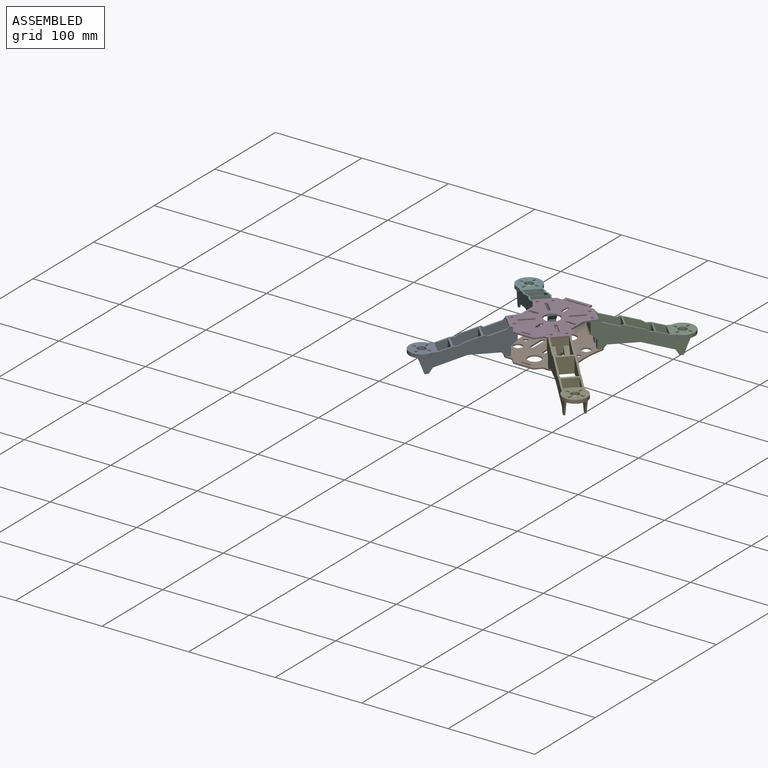
[diagram: assembled view]
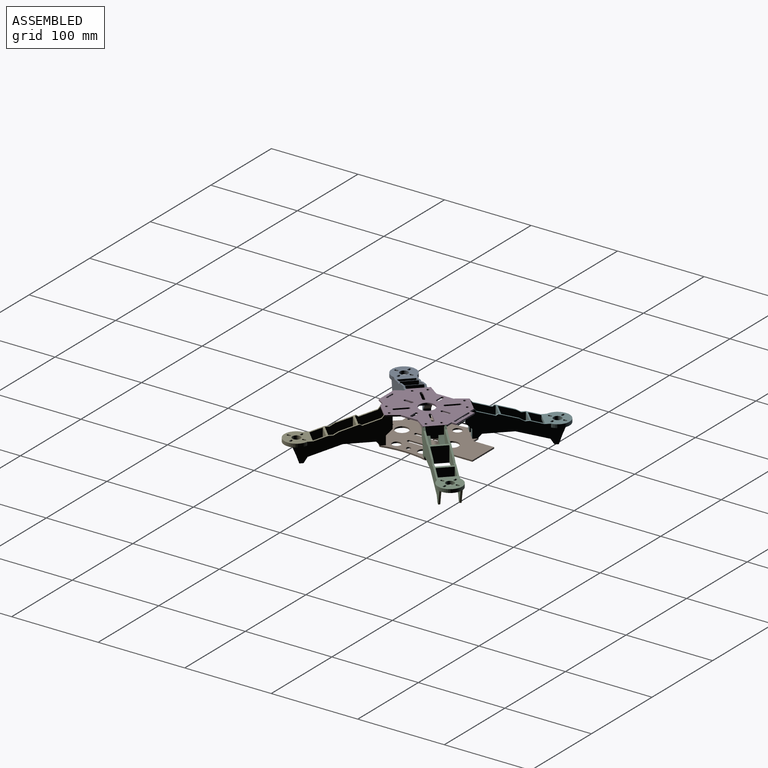
[diagram: assembled view, second angle]
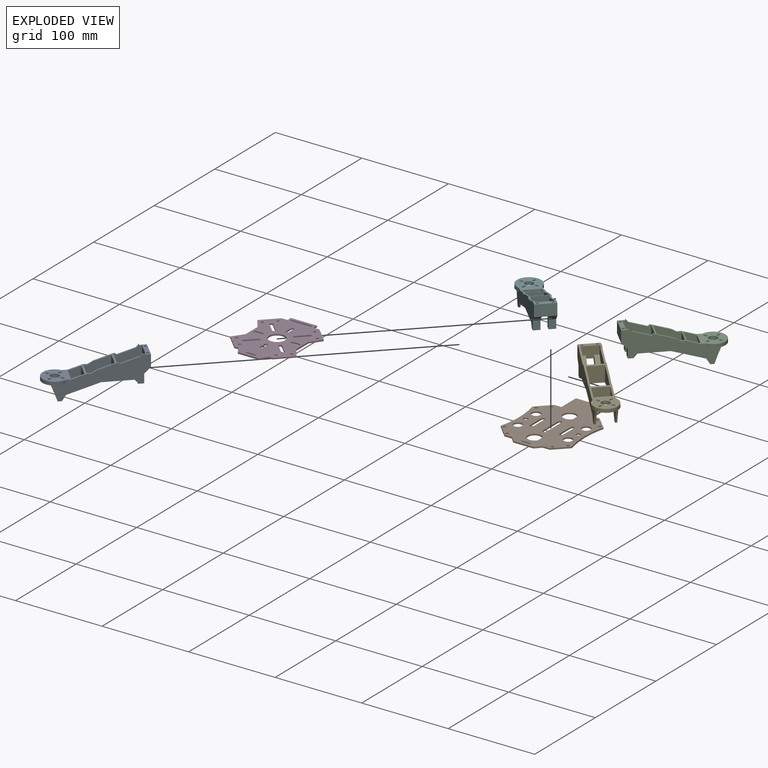
[diagram: exploded view]
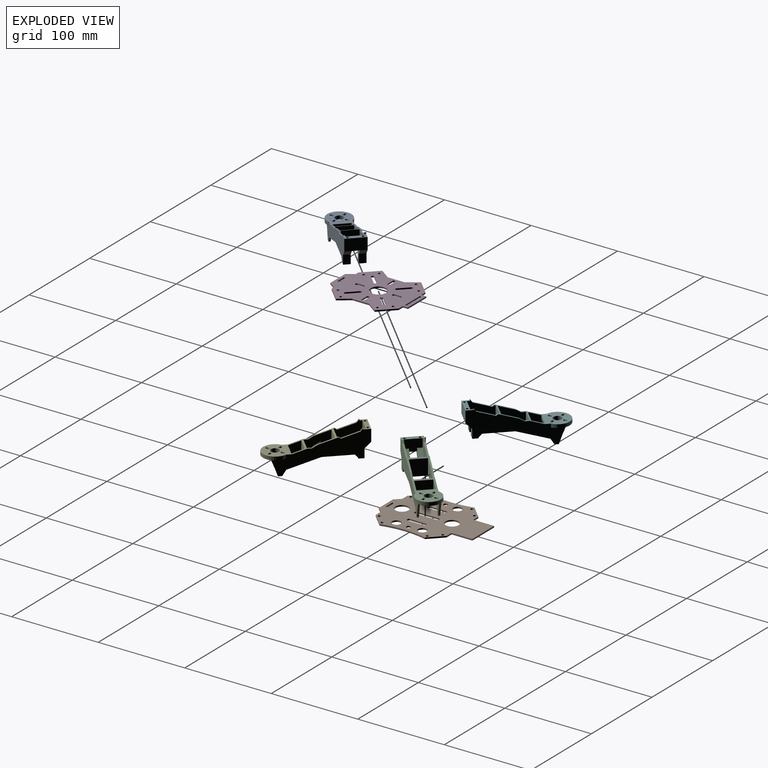
[diagram: exploded view, second angle]
ASSEMBLY  parts=6 mates=4
PART A: 83 faces, bbox 104.5x28x43.7 mm
  f0: plane 30.64x27.6mm, normal (0,1,0), area 504mm2, adj f5,f35,f36,f37,f42,f43,f44,f45
  f1: plane 27.04x22.51mm, normal (0,-1,0), area 400.2mm2, adj f34,f35,f47,f51,f52,f80,f81
  f2: plane 27.04x22.51mm, normal (0,1,0), area 400.2mm2, adj f34,f35,f47,f48,f49,f80,f81
  f3: plane 32.99x25.93mm, normal (0,-1,0), area 429.1mm2, adj f7,f8,f29,f34,f50,f62,f63,f64
  f4: plane 32.99x25.93mm, normal (0,1,0), area 429.1mm2, adj f7,f8,f29,f30,f31,f32,f33,f34
  f5: plane 18.5x13.34mm, normal (-1,0,0), area 209.2mm2, adj f0,f6,f42,f66,f71,f72,f73,f74
  f6: plane 7.78x5mm, normal (0,0,-1), area 38.9mm2, adj f5,f41,f72,f74
  f7: plane 18.5x4mm, normal (1,0,0), area 74mm2, adj f3,f4,f8,f29
  f8: plane 28x28mm, normal (0,0,-1), area 463.1mm2, adj f3,f4,f7,f9,f10,f11,f12,f13
  f9: cylinder r=1.25mm len=4mm, axis (0,0,-1), area 15.7mm2, adj f8,f10,f28,f29
  f10: plane 4x1.41mm, normal (-0.71,-0.71,0), area 8mm2, adj f8,f9,f11,f29
  f11: cylinder r=1.25mm len=4mm, axis (0,0,-1), area 15.7mm2, adj f8,f10,f28,f29
  f12: plane 96.63x43.7mm, normal (0,-1,0), area 1607mm2, adj f8,f23,f29,f30,f31,f32,f33,f34
  f13: plane 96.63x43.7mm, normal (0,1,0), area 1607mm2, adj f8,f23,f29,f34,f35,f41,f42,f47
  f14: cylinder r=1.25mm len=4mm, axis (0,0,-1), area 15.7mm2, adj f8,f15,f24,f29
  f15: plane 4x1.41mm, normal (-0.71,0.71,0), area 8mm2, adj f8,f14,f16,f29
  f16: cylinder r=1.25mm len=4mm, axis (0,0,-1), area 15.7mm2, adj f8,f15,f24,f29
  f17: cylinder r=1.25mm len=4mm, axis (0,0,-1), area 15.7mm2, adj f8,f18,f25,f29
  f18: plane 4x1.41mm, normal (0.71,0.71,0), area 8mm2, adj f8,f17,f19,f29
  f19: cylinder r=1.25mm len=4mm, axis (0,0,-1), area 15.7mm2, adj f8,f18,f25,f29
  f20: cylinder r=1.25mm len=4mm, axis (0,0,-1), area 15.7mm2, adj f8,f21,f26,f29
  f21: plane 4x1.41mm, normal (0.71,-0.71,0), area 8mm2, adj f8,f20,f22,f29
  f22: cylinder r=1.25mm len=4mm, axis (0,0,-1), area 15.7mm2, adj f8,f21,f26,f29
  f23: cylinder r=14mm len=28mm, axis (0,0,-1), area 247.3mm2, adj f8,f12,f13,f29
  f24: plane 4x1.41mm, normal (0.71,-0.71,0), area 8mm2, adj f8,f14,f16,f29
  f25: plane 4x1.41mm, normal (-0.71,-0.71,0), area 8mm2, adj f8,f17,f19,f29
  f26: plane 4x1.41mm, normal (-0.71,0.71,0), area 8mm2, adj f8,f20,f22,f29
  f27: cylinder r=4.75mm len=9.5mm, axis (0,0,-1), area 119.4mm2, adj f8,f29
  f28: plane 4x1.41mm, normal (0.71,0.71,0), area 8mm2, adj f8,f9,f11,f29
  f29: plane 28.32x28mm, normal (0,0,1), area 544.9mm2, adj f3,f4,f7,f9,f10,f11,f12,f13
  f30: plane 7.94x3.35mm, normal (-0.92,0,-0.39), area 17.2mm2, adj f4,f8,f12,f31
  f31: plane 10.06x3.56mm, normal (-0.94,0,-0.33), area 21.3mm2, adj f4,f12,f30,f32
  f32: plane 4.06x2mm, normal (0,0,-1), area 8.1mm2, adj f4,f12,f31,f33
  f33: plane 6.22x3.94mm, normal (0.84,0,-0.53), area 14.7mm2, adj f4,f12,f32,f34
  f34: plane 33.76x22.5mm, normal (0.3,0,-0.95), area 180.3mm2, adj f1,f2,f3,f4,f12,f13,f33,f35
  f35: plane 32.13x22.5mm, normal (0,0,-1), area 165.5mm2, adj f0,f1,f2,f12,f13,f34,f36,f61
  f36: plane 3.74x3.32mm, normal (-0.75,0,-0.66), area 10mm2, adj f0,f12,f35,f37
  f37: plane 12.76x7.36mm, normal (-1,0,0), area 69.9mm2, adj f0,f12,f36,f38,f73,f74
  f38: plane 7.36x6mm, normal (0,0,-1), area 37.1mm2, adj f12,f37,f39,f74,f77
  f39: plane 10.25x7.36mm, normal (1,0,0), area 75.4mm2, adj f12,f38,f40,f74
  f40: plane 7.36x6.5mm, normal (0.7,0,-0.71), area 67.2mm2, adj f12,f39,f41,f74
  f41: plane 22.5x13.34mm, normal (1,0,0), area 300mm2, adj f6,f12,f13,f40,f42,f57
  f42: plane 22.5x7.9mm, normal (0,0,1), area 110mm2, adj f0,f5,f12,f13,f41,f43,f56,f66
  f43: plane 2x1.4mm, normal (1,0,0), area 2.8mm2, adj f0,f12,f42,f44
  f44: plane 3.35x2.51mm, normal (-0.8,0,0.6), area 8.4mm2, adj f0,f12,f43,f45
  f45: plane 18.91x5.92mm, normal (-0.3,0,0.95), area 39.6mm2, adj f0,f12,f44,f46
  f46: plane 2.28x2mm, normal (0.56,0,0.83), area 5.5mm2, adj f0,f12,f45,f47
  f47: plane 22.5x20.16mm, normal (-0.3,0,0.95), area 123.3mm2, adj f0,f1,f2,f12,f13,f46,f48,f52
  f48: plane 5.38x3.18mm, normal (-0.51,0,0.86), area 12.5mm2, adj f2,f12,f47,f49
  f49: plane 4.5x2mm, normal (0.02,0,1), area 9mm2, adj f2,f12,f48,f50
  f50: plane 22.5x14.54mm, normal (-0.3,0,0.95), area 99.7mm2, adj f3,f4,f12,f13,f29,f49,f51,f79
  f51: plane 4.5x2mm, normal (0.02,0,1), area 9mm2, adj f1,f13,f50,f52
  f52: plane 5.38x3.18mm, normal (-0.51,0,0.86), area 12.5mm2, adj f1,f13,f47,f51
  f53: plane 2.28x2mm, normal (0.56,0,0.83), area 5.5mm2, adj f13,f47,f54,f66
  f54: plane 18.91x5.92mm, normal (-0.3,0,0.95), area 39.6mm2, adj f13,f53,f55,f66
  f55: plane 3.35x2.51mm, normal (-0.8,0,0.6), area 8.4mm2, adj f13,f54,f56,f66
  f56: plane 2x1.4mm, normal (1,0,0), area 2.8mm2, adj f13,f42,f55,f66
  f57: plane 7.36x6.5mm, normal (0.7,0,-0.71), area 67.2mm2, adj f13,f41,f58,f72
  f58: plane 10.25x7.36mm, normal (1,0,0), area 75.4mm2, adj f13,f57,f59,f72
  f59: plane 7.36x6mm, normal (0,0,-1), area 37.1mm2, adj f13,f58,f60,f72,f75
  f60: plane 12.76x7.36mm, normal (-1,0,0), area 69.9mm2, adj f13,f59,f61,f66,f71,f72
  f61: plane 3.74x3.32mm, normal (-0.75,0,-0.66), area 10mm2, adj f13,f35,f60,f66
  f62: plane 6.22x3.94mm, normal (0.84,0,-0.53), area 14.7mm2, adj f3,f13,f34,f63
  f63: plane 4.06x2mm, normal (0,0,-1), area 8.1mm2, adj f3,f13,f62,f64
  f64: plane 10.06x3.56mm, normal (-0.94,0,-0.33), area 21.3mm2, adj f3,f13,f63,f65
  f65: plane 7.94x3.35mm, normal (-0.92,0,-0.39), area 17.2mm2, adj f3,f8,f13,f64
  f66: plane 30.64x27.6mm, normal (0,-1,0), area 504mm2, adj f5,f35,f42,f47,f53,f54,f55,f56
  f67: cylinder r=1.5mm len=4mm, axis (0,0,1), area 37.7mm2, adj f42,f68
  f68: plane 3x3mm, normal (0,0,1), area 7.1mm2, adj f67
  f69: cylinder r=1.5mm len=4mm, axis (0,0,1), area 37.7mm2, adj f42,f70
  f70: plane 3x3mm, normal (0,0,1), area 7.1mm2, adj f69
  f71: plane 7.5x7.4mm, normal (-0.7,0,0.71), area 56.5mm2, adj f5,f60,f66,f72
  f72: plane 20.16x12.5mm, normal (0,-1,0), area 119.3mm2, adj f5,f6,f57,f58,f59,f60,f71
  f73: plane 7.5x7.4mm, normal (-0.7,0,0.71), area 56.5mm2, adj f0,f5,f37,f74
  f74: plane 20.16x12.5mm, normal (0,1,0), area 119.3mm2, adj f5,f6,f37,f38,f39,f40,f73
  f75: cylinder r=1.5mm len=4mm, axis (0,0,-1), area 37.7mm2, adj f59,f76
  f76: plane 3x3mm, normal (0,0,-1), area 7.1mm2, adj f75
  f77: cylinder r=1.5mm len=4mm, axis (0,0,-1), area 37.7mm2, adj f38,f78
  f78: plane 3x3mm, normal (0,0,-1), area 7.1mm2, adj f77
  f79: plane 18.5x14.04mm, normal (-1,0,0), area 259.8mm2, adj f3,f4,f34,f50
  f80: plane 18.5x14.04mm, normal (1,0,0), area 259.8mm2, adj f1,f2,f34,f50
  f81: plane 18.5x18.22mm, normal (-1,0,0), area 337.2mm2, adj f1,f2,f35,f47
  f82: plane 18.85x18.5mm, normal (1,0,0), area 348.7mm2, adj f0,f35,f47,f66
PART B: 50 faces, bbox 82x112.5x1.6 mm
  f0: plane 18x1.6mm, normal (1,0,0), area 28.8mm2, adj f1,f29,f48,f49
  f1: cylinder r=2mm len=4mm, axis (0,0,-1), area 10.1mm2, adj f0,f2,f48,f49
  f2: plane 18x1.6mm, normal (-1,0,0), area 28.8mm2, adj f1,f29,f48,f49
  f3: cylinder r=2mm len=4mm, axis (0,0,-1), area 10.1mm2, adj f4,f30,f48,f49
  f4: plane 18x1.6mm, normal (-1,0,0), area 28.8mm2, adj f3,f5,f48,f49
  f5: cylinder r=2mm len=4mm, axis (0,0,-1), area 10.1mm2, adj f4,f30,f48,f49
  f6: cylinder r=2mm len=4mm, axis (0,0,-1), area 10.1mm2, adj f7,f31,f48,f49
  f7: plane 25x1.6mm, normal (-1,0,0), area 40mm2, adj f6,f8,f48,f49
  f8: cylinder r=2mm len=4mm, axis (0,0,-1), area 10.1mm2, adj f7,f31,f48,f49
  f9: plane 9x1.6mm, normal (0,1,0), area 14.4mm2, adj f10,f32,f48,f49
  f10: cylinder r=1mm len=2mm, axis (0,0,-1), area 5mm2, adj f9,f11,f48,f49
  f11: plane 9x1.6mm, normal (0,-1,0), area 14.4mm2, adj f10,f32,f48,f49
  f12: plane 8.18x1.6mm, normal (0,-1,0), area 13.1mm2, adj f13,f33,f48,f49
  f13: plane 24x1.6mm, normal (-1,0,0), area 38.4mm2, adj f12,f14,f48,f49
  f14: plane 36x1.6mm, normal (0,-1,0), area 57.6mm2, adj f13,f15,f48,f49
  f15: plane 24x1.6mm, normal (1,0,0), area 38.4mm2, adj f14,f16,f48,f49
  f16: plane 8.18x1.6mm, normal (0,-1,0), area 13.1mm2, adj f15,f17,f48,f49
  f17: plane 14.83x14.83mm, normal (0.71,-0.71,0), area 33.5mm2, adj f16,f18,f48,f49
  f18: cylinder r=107.03mm len=52.35mm, axis (0,0,-1), area 84.6mm2, adj f17,f19,f48,f49
  f19: plane 14.83x14.83mm, normal (0.71,0.71,0), area 33.5mm2, adj f18,f20,f48,f49
  f20: plane 8.43x1.6mm, normal (0,1,0), area 13.5mm2, adj f19,f21,f48,f49
  f21: plane 6.5x6mm, normal (0.73,0.68,0), area 14.2mm2, adj f20,f22,f48,f49
  f22: plane 23.5x1.6mm, normal (0,1,0), area 37.6mm2, adj f21,f23,f48,f49
  f23: plane 6.5x6mm, normal (-0.73,0.68,0), area 14.2mm2, adj f22,f24,f48,f49
  f24: plane 8.43x1.6mm, normal (0,1,0), area 13.5mm2, adj f23,f25,f48,f49
  f25: plane 14.83x14.83mm, normal (-0.71,0.71,0), area 33.5mm2, adj f24,f26,f48,f49
  f26: cylinder r=107.03mm len=52.35mm, axis (0,0,-1), area 84.6mm2, adj f25,f33,f48,f49
  f27: cylinder r=7.5mm len=15mm, axis (0,0,-1), area 75.4mm2, adj f48,f49
  f28: cylinder r=7.5mm len=15mm, axis (0,0,-1), area 75.4mm2, adj f48,f49
  f29: cylinder r=2mm len=4mm, axis (0,0,-1), area 10.1mm2, adj f0,f2,f48,f49
  f30: plane 18x1.6mm, normal (1,0,0), area 28.8mm2, adj f3,f5,f48,f49
  f31: plane 25x1.6mm, normal (1,0,0), area 40mm2, adj f6,f8,f48,f49
  f32: cylinder r=1mm len=2mm, axis (0,0,-1), area 5mm2, adj f9,f11,f48,f49
  f33: plane 14.83x14.83mm, normal (-0.71,-0.71,0), area 33.5mm2, adj f12,f26,f48,f49
  f34: cylinder r=2.5mm len=5mm, axis (0,0,-1), area 25.1mm2, adj f48,f49
  f35: cylinder r=2.5mm len=5mm, axis (0,0,-1), area 25.1mm2, adj f48,f49
  f36: cylinder r=5mm len=10mm, axis (0,0,-1), area 50.3mm2, adj f48,f49
  f37: cylinder r=5mm len=10mm, axis (0,0,-1), area 50.3mm2, adj f48,f49
  f38: cylinder r=5mm len=10mm, axis (0,0,-1), area 50.3mm2, adj f48,f49
  f39: cylinder r=1.62mm len=3.25mm, axis (0,0,-1), area 16.3mm2, adj f48,f49
  f40: cylinder r=1.62mm len=3.25mm, axis (0,0,-1), area 16.3mm2, adj f48,f49
  f41: cylinder r=1.62mm len=3.25mm, axis (0,0,-1), area 16.3mm2, adj f48,f49
  f42: cylinder r=1.62mm len=3.25mm, axis (0,0,-1), area 16.3mm2, adj f48,f49
  f43: cylinder r=1.62mm len=3.25mm, axis (0,0,-1), area 16.3mm2, adj f48,f49
  f44: cylinder r=1.62mm len=3.25mm, axis (0,0,-1), area 16.3mm2, adj f48,f49
  f45: cylinder r=1.62mm len=3.25mm, axis (0,0,-1), area 16.3mm2, adj f48,f49
  f46: cylinder r=1.62mm len=3.25mm, axis (0,0,-1), area 16.3mm2, adj f48,f49
  f47: cylinder r=5mm len=10mm, axis (0,0,-1), area 50.3mm2, adj f48,f49
  f48: plane 112.5x82mm, normal (0,0,1), area 6036.6mm2, adj f0,f1,f2,f3,f4,f5,f6,f7
  f49: plane 112.5x82mm, normal (0,0,-1), area 6036.6mm2, adj f0,f1,f2,f3,f4,f5,f6,f7
PART C: same geometry as A
PART D: 71 faces, bbox 76.8x91.7x1.6 mm
  f0: cylinder r=1.59mm len=2.71mm, axis (0,0,-1), area 8.1mm2, adj f1,f68,f69,f70
  f1: plane 10.13x10.13mm, normal (-0.71,-0.71,0), area 23.3mm2, adj f0,f2,f69,f70
  f2: cylinder r=1.59mm len=2.71mm, axis (0,0,-1), area 8.1mm2, adj f1,f68,f69,f70
  f3: cylinder r=1.59mm len=3.18mm, axis (0,0,-1), area 8.1mm2, adj f4,f49,f69,f70
  f4: plane 7.83x1.63mm, normal (0,1,0), area 12.7mm2, adj f3,f5,f69,f70
  f5: cylinder r=1.59mm len=3.18mm, axis (0,0,-1), area 8.1mm2, adj f4,f49,f69,f70
  f6: cylinder r=1.59mm len=3.18mm, axis (0,0,-1), area 8.1mm2, adj f7,f50,f69,f70
  f7: plane 7.83x1.63mm, normal (1,0,0), area 12.7mm2, adj f6,f8,f69,f70
  f8: cylinder r=1.59mm len=3.18mm, axis (0,0,-1), area 8.1mm2, adj f7,f50,f69,f70
  f9: cylinder r=1.59mm len=3.18mm, axis (0,0,-1), area 8.1mm2, adj f10,f51,f69,f70
  f10: plane 7.83x1.63mm, normal (0,-1,0), area 12.7mm2, adj f9,f11,f69,f70
  f11: cylinder r=1.59mm len=3.18mm, axis (0,0,-1), area 8.1mm2, adj f10,f51,f69,f70
  f12: cylinder r=1.59mm len=3.18mm, axis (0,0,-1), area 8.1mm2, adj f13,f52,f69,f70
  f13: plane 7.83x1.63mm, normal (-1,0,0), area 12.7mm2, adj f12,f14,f69,f70
  f14: cylinder r=1.59mm len=3.18mm, axis (0,0,-1), area 8.1mm2, adj f13,f52,f69,f70
  f15: cylinder r=1.59mm len=2.71mm, axis (0,0,-1), area 8.1mm2, adj f16,f53,f69,f70
  f16: plane 10.13x10.13mm, normal (-0.71,0.71,0), area 23.3mm2, adj f15,f17,f69,f70
  f17: cylinder r=1.59mm len=2.71mm, axis (0,0,-1), area 8.1mm2, adj f16,f53,f69,f70
  f18: cylinder r=1.59mm len=2.71mm, axis (0,0,-1), area 8.1mm2, adj f19,f54,f69,f70
  f19: plane 10.13x10.13mm, normal (-0.71,-0.71,0), area 23.3mm2, adj f18,f20,f69,f70
  f20: cylinder r=1.59mm len=2.71mm, axis (0,0,-1), area 8.1mm2, adj f19,f54,f69,f70
  f21: cylinder r=1.59mm len=2.71mm, axis (0,0,-1), area 8.1mm2, adj f22,f55,f69,f70
  f22: plane 10.13x10.13mm, normal (0.71,-0.71,0), area 23.3mm2, adj f21,f23,f69,f70
  f23: cylinder r=1.59mm len=2.71mm, axis (0,0,-1), area 8.1mm2, adj f22,f55,f69,f70
  f24: plane 24.51x1.63mm, normal (0,-1,0), area 39.8mm2, adj f25,f56,f69,f70
  f25: plane 8.36x5.52mm, normal (0.83,-0.55,0), area 16.3mm2, adj f24,f26,f69,f70
  f26: plane 4.18x1.63mm, normal (0,-1,0), area 6.8mm2, adj f25,f27,f69,f70
  f27: plane 16.43x16.43mm, normal (0.71,-0.71,0), area 37.8mm2, adj f26,f28,f69,f70
  f28: plane 12.56x9.06mm, normal (0.81,0.58,0), area 25.2mm2, adj f27,f29,f69,f70
  f29: plane 19.69x1.63mm, normal (1,0,0), area 32mm2, adj f28,f30,f69,f70
  f30: plane 12.56x9.06mm, normal (0.81,-0.58,0), area 25.2mm2, adj f29,f31,f69,f70
  f31: plane 16.43x16.43mm, normal (0.71,0.71,0), area 37.8mm2, adj f30,f32,f69,f70
  f32: plane 6.85x1.63mm, normal (0,1,0), area 11.1mm2, adj f31,f33,f69,f70
  f33: plane 5.72x1.63mm, normal (1,0,0), area 9.3mm2, adj f32,f34,f69,f70
  f34: plane 30.23x1.63mm, normal (0,1,0), area 49.1mm2, adj f33,f35,f69,f70
  f35: plane 5.72x1.63mm, normal (-1,0,0), area 9.3mm2, adj f34,f36,f69,f70
  f36: plane 6.85x1.63mm, normal (0,1,0), area 11.1mm2, adj f35,f37,f69,f70
  f37: plane 16.43x16.43mm, normal (-0.71,0.71,0), area 37.8mm2, adj f36,f38,f69,f70
  f38: plane 12.56x9.06mm, normal (-0.81,-0.58,0), area 25.2mm2, adj f37,f39,f69,f70
  f39: plane 19.69x1.63mm, normal (-1,0,0), area 32mm2, adj f38,f40,f69,f70
  f40: plane 12.56x9.06mm, normal (-0.81,0.58,0), area 25.2mm2, adj f39,f41,f69,f70
  f41: plane 16.43x16.43mm, normal (-0.71,-0.71,0), area 37.8mm2, adj f40,f42,f69,f70
  f42: plane 4.18x1.63mm, normal (0,-1,0), area 6.8mm2, adj f41,f56,f69,f70
  f43: plane 22.58x1.63mm, normal (0,1,0), area 36.7mm2, adj f44,f57,f69,f70
  f44: cylinder r=1.09mm len=2.18mm, axis (0,0,-1), area 5.6mm2, adj f43,f45,f69,f70
  f45: plane 22.58x1.63mm, normal (0,-1,0), area 36.7mm2, adj f44,f57,f69,f70
  f46: plane 9.02x1.63mm, normal (0,1,0), area 14.7mm2, adj f47,f58,f69,f70
  f47: cylinder r=1.02mm len=2.03mm, axis (0,0,-1), area 5.2mm2, adj f46,f48,f69,f70
  f48: plane 9.02x1.63mm, normal (0,-1,0), area 14.7mm2, adj f47,f58,f69,f70
  f49: plane 7.83x1.63mm, normal (0,-1,0), area 12.7mm2, adj f3,f5,f69,f70
  f50: plane 7.83x1.63mm, normal (-1,0,0), area 12.7mm2, adj f6,f8,f69,f70
  f51: plane 7.83x1.63mm, normal (0,1,0), area 12.7mm2, adj f9,f11,f69,f70
  f52: plane 7.83x1.63mm, normal (1,0,0), area 12.7mm2, adj f12,f14,f69,f70
  f53: plane 10.13x10.13mm, normal (0.71,-0.71,0), area 23.3mm2, adj f15,f17,f69,f70
  f54: plane 10.13x10.13mm, normal (0.71,0.71,0), area 23.3mm2, adj f18,f20,f69,f70
  f55: plane 10.13x10.13mm, normal (-0.71,0.71,0), area 23.3mm2, adj f21,f23,f69,f70
  f56: plane 8.36x5.52mm, normal (-0.83,-0.55,0), area 16.3mm2, adj f24,f42,f69,f70
  f57: cylinder r=1.09mm len=2.18mm, axis (0,0,-1), area 5.6mm2, adj f43,f45,f69,f70
  f58: cylinder r=1.02mm len=2.03mm, axis (0,0,-1), area 5.2mm2, adj f46,f48,f69,f70
  f59: cylinder r=9mm len=18mm, axis (0,0,-1), area 91.9mm2, adj f69,f70
  f60: cylinder r=1.5mm len=3mm, axis (0,0,-1), area 15.3mm2, adj f69,f70
  f61: cylinder r=1.5mm len=3mm, axis (0,0,-1), area 15.3mm2, adj f69,f70
  f62: cylinder r=1.5mm len=3mm, axis (0,0,-1), area 15.3mm2, adj f69,f70
  f63: cylinder r=1.5mm len=3mm, axis (0,0,-1), area 15.3mm2, adj f69,f70
  f64: cylinder r=1.5mm len=3mm, axis (0,0,-1), area 15.3mm2, adj f69,f70
  f65: cylinder r=1.5mm len=3mm, axis (0,0,-1), area 15.3mm2, adj f69,f70
  f66: cylinder r=1.5mm len=3mm, axis (0,0,-1), area 15.3mm2, adj f69,f70
  f67: cylinder r=1.5mm len=3mm, axis (0,0,-1), area 15.3mm2, adj f69,f70
  f68: plane 10.13x10.13mm, normal (0.71,0.71,0), area 23.3mm2, adj f0,f2,f69,f70
  f69: plane 91.75x76.78mm, normal (0,0,1), area 4533.5mm2, adj f0,f1,f2,f3,f4,f5,f6,f7
  f70: plane 91.75x76.78mm, normal (0,0,-1), area 4533.5mm2, adj f0,f1,f2,f3,f4,f5,f6,f7
PART E: same geometry as A
PART F: same geometry as A
PLACE A rot(axis=(0,0,1),45deg) t=(-88.74,-88.74,-25.93)mm
PLACE B rot(axis=(1,0,0),180deg) t=(0,0,-31.63)mm
PLACE C rot(axis=(0,0,-1),135deg) t=(88.74,88.74,-25.93)mm
PLACE D t=(0,0,-1.63)mm
PLACE E rot(axis=(0,0,1),135deg) t=(88.74,-88.74,-25.93)mm
PLACE F rot(axis=(0,0,-1),45deg) t=(-88.74,88.74,-25.93)mm
MATE planar A.f42 <-> D.f70  axis (0,0,1) through (-26.81,-26.81,-1.63)mm
MATE planar B.f49 <-> A.f77  axis (0,0,1) through (-2,12.5,-31.63)mm
MATE parallel A.f56 <-> D.f41  axis (0.71,0.71,0) through (-37.58,-23.09,-0.93)mm
MATE cylindrical A.f67 <-> D.f63  axis (0,0,1) through (-21.21,-31.82,-1.63)mm
